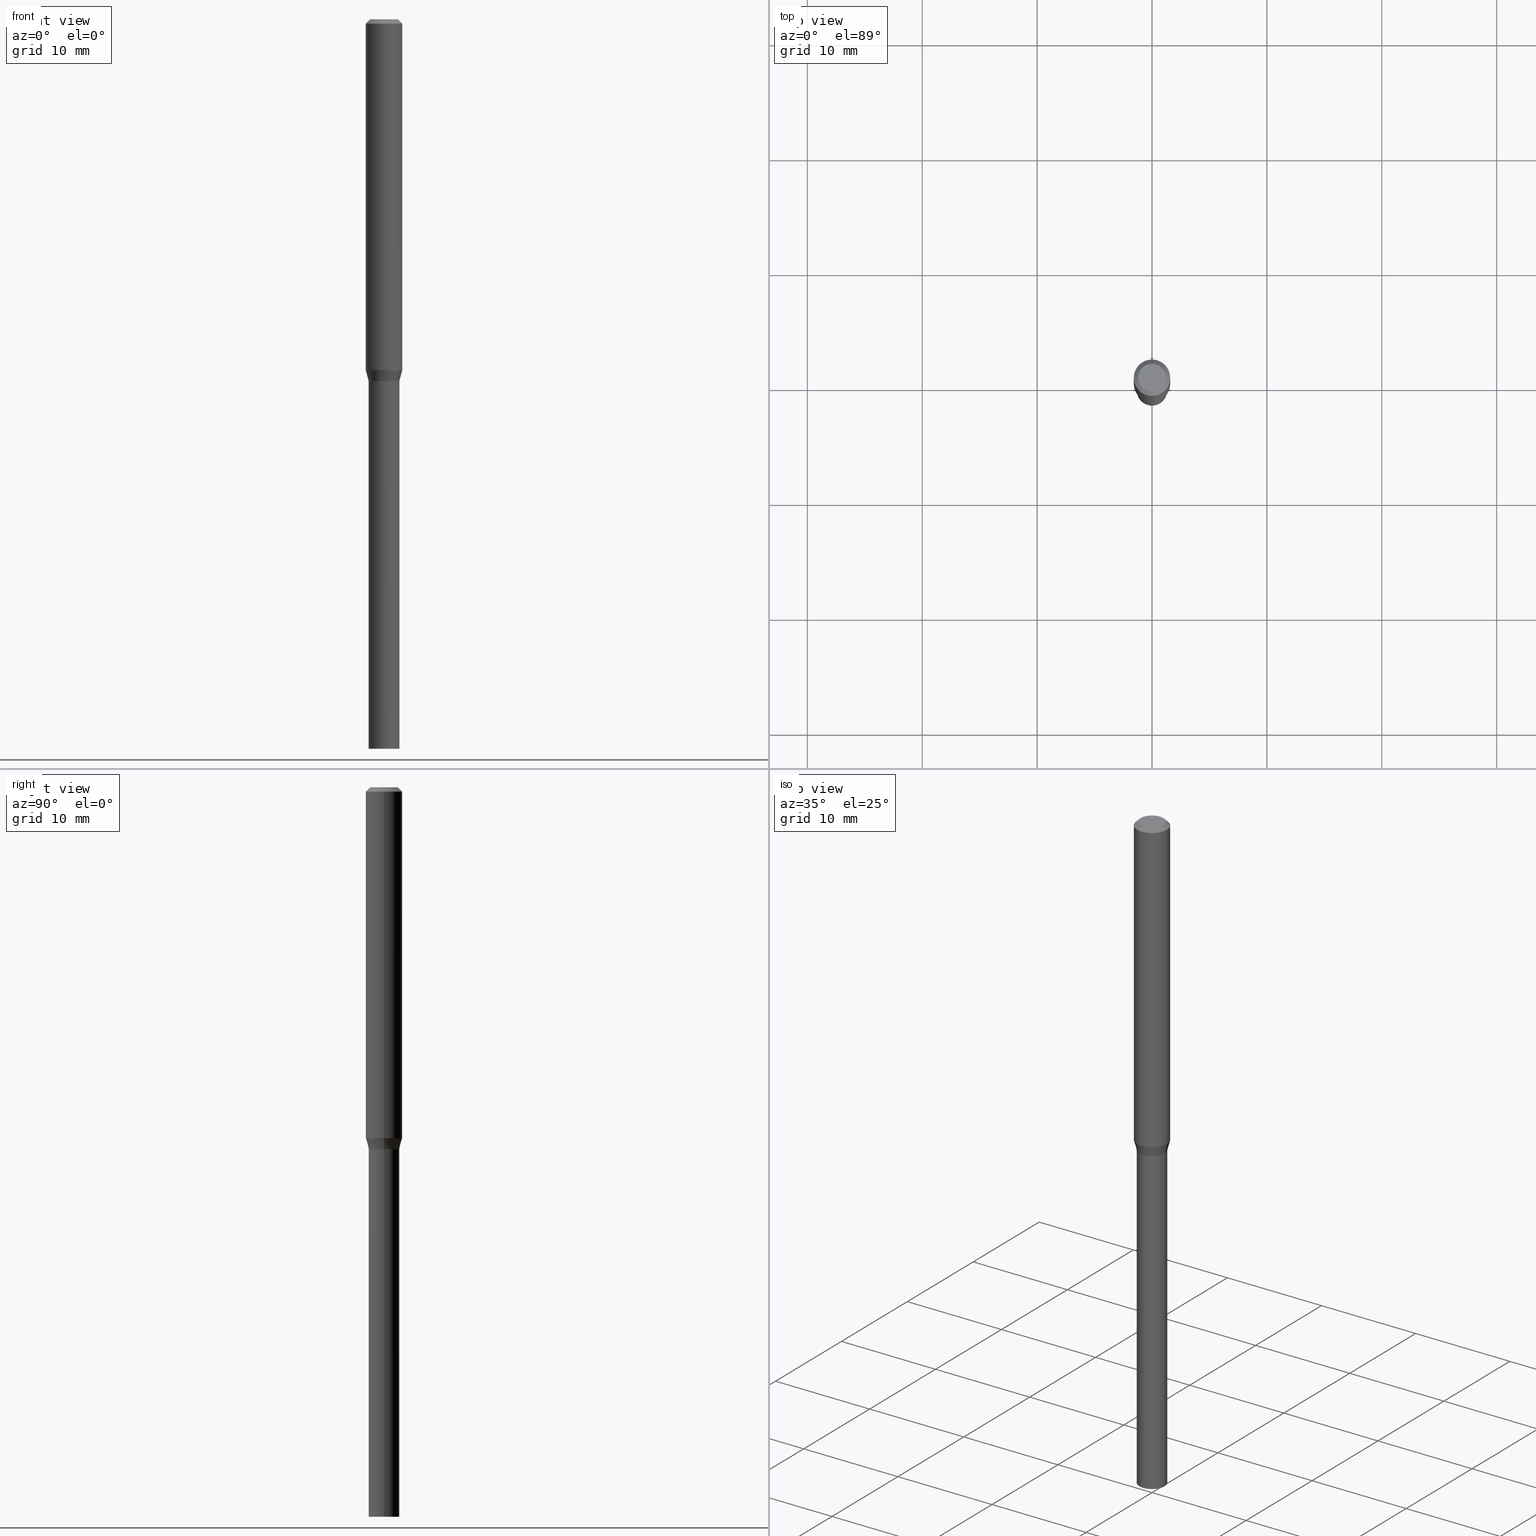
[diagram: canonical four-view strip — front | top / right | iso, engineering-drawing reading convention]
A machine part, canonical four-view strip (front | top / right | iso — engineering-drawing reading convention). The complete STEP part file that produces these views, byte-faithful:
ISO-10303-21;
HEADER;
FILE_DESCRIPTION (( 'STEP AP203' ),
    '1' );
FILE_NAME ('01307.STEP',
    '2024-03-20T01:19:23',
    ( '' ),
    ( '' ),
    'SwSTEP 2.0',
    'SolidWorks 2023',
    '' );
FILE_SCHEMA (( 'CONFIG_CONTROL_DESIGN' ));
ENDSEC;

DATA;
#1 = DIRECTION ( 'NONE',  ( 1.000000000000000000, -6.982962677686265922E-15, 4.876176775795935232E-29 ) ) ;
#2 = DIRECTION ( 'NONE',  ( -2.438088387897960049E-29, 3.491481338843145188E-15, 1.000000000000000000 ) ) ;
#3 = PERSON_AND_ORGANIZATION ( #52, #338 ) ;
#4 = EDGE_CURVE ( 'NONE', #453, #76, #447, .T. ) ;
#5 = CIRCLE ( 'NONE', #309, 0.05249999999999964417 ) ;
#6 = PERSON_AND_ORGANIZATION ( #52, #338 ) ;
#7 = ORIENTED_EDGE ( 'NONE', *, *, #183, .F. ) ;
#8 = AXIS2_PLACEMENT_3D ( 'NONE', #58, #206, #278 ) ;
#9 = SECURITY_CLASSIFICATION ( '', '', #393 ) ;
#10 = EDGE_CURVE ( 'NONE', #339, #76, #5, .T. ) ;
#11 = PERSON_AND_ORGANIZATION ( #52, #338 ) ;
#12 = ORIENTED_EDGE ( 'NONE', *, *, #356, .F. ) ;
#13 = EDGE_CURVE ( 'NONE', #224, #94, #275, .T. ) ;
#14 = PERSON_AND_ORGANIZATION_ROLE ( 'design_supplier' ) ;
#15 = ORIENTED_EDGE ( 'NONE', *, *, #388, .T. ) ;
#16 = ORIENTED_EDGE ( 'NONE', *, *, #64, .F. ) ;
#17 = VECTOR ( 'NONE', #380, 39.37007874015748143 ) ;
#18 = AXIS2_PLACEMENT_3D ( 'NONE', #171, #240, #378 ) ;
#19 = LINE ( 'NONE', #367, #174 ) ;
#20 = LOCAL_TIME ( 21, 19, 23.00000000000000000, #441 ) ;
#21 = ORIENTED_EDGE ( 'NONE', *, *, #111, .F. ) ;
#22 = EDGE_CURVE ( 'NONE', #332, #222, #186, .T. ) ;
#23 = DIRECTION ( 'NONE',  ( -2.445468806185136597E-29, 3.491481338843145583E-15, 1.000000000000000000 ) ) ;
#24 = DIRECTION ( 'NONE',  ( 1.000000000000000000, -6.982962677686258822E-15, 0.000000000000000000 ) ) ;
#25 = AXIS2_PLACEMENT_3D ( 'NONE', #204, #175, #349 ) ;
#26 = CARTESIAN_POINT ( 'NONE',  ( -1.242481641055671551E-44, 1.773934491672540338E-30, 5.080750316312184837E-16 ) ) ;
#27 = DIRECTION ( 'NONE',  ( 1.000000000000000000, -6.982962677686258822E-15, 0.000000000000000000 ) ) ;
#28 = EDGE_CURVE ( 'NONE', #451, #453, #228, .T. ) ;
#29 = CARTESIAN_POINT ( 'NONE',  ( 2.941115181339488673E-29, -4.199133002663083493E-15, -1.202679491924309785 ) ) ;
#30 = DIRECTION ( 'NONE',  ( -2.445468806185136597E-29, 3.491481338843145583E-15, 1.000000000000000000 ) ) ;
#31 = CIRCLE ( 'NONE', #18, 0.04749999999999999362 ) ;
#32 = DIRECTION ( 'NONE',  ( 1.000000000000000000, -6.982962677686266711E-15, 4.876176775795935793E-29 ) ) ;
#33 = CARTESIAN_POINT ( 'NONE',  ( 3.668203209277705088E-31, -5.237222008264718399E-17, -0.01499999999999999944 ) ) ;
#34 = ADVANCED_FACE ( 'NONE', ( #377 ), #98, .T. ) ;
#35 = EDGE_CURVE ( 'NONE', #196, #124, #57, .T. ) ;
#36 = CARTESIAN_POINT ( 'NONE',  ( 0.000000000000000000, 0.000000000000000000, 0.000000000000000000 ) ) ;
#37 = APPLICATION_PROTOCOL_DEFINITION ( 'international standard', 'config_control_design', 1994, #306 ) ;
#38 = VECTOR ( 'NONE', #143, 39.37007874015748143 ) ;
#39 = DIRECTION ( 'NONE',  ( -2.445468806185136597E-29, 3.491481338843145583E-15, 1.000000000000000000 ) ) ;
#40 = DIRECTION ( 'NONE',  ( 0.7071067811865656694, -2.468850131082446387E-15, 0.7071067811865294761 ) ) ;
#41 = EDGE_LOOP ( 'NONE', ( #97, #15 ) ) ;
#42 = DATE_TIME_ROLE ( 'classification_date' ) ;
#43 = ORIENTED_EDGE ( 'NONE', *, *, #388, .F. ) ;
#44 = EDGE_LOOP ( 'NONE', ( #7, #417, #189, #43 ) ) ;
#45 = CIRCLE ( 'NONE', #293, 0.05249999999999964417 ) ;
#46 = LOCAL_TIME ( 21, 19, 23.00000000000000000, #157 ) ;
#47 = CARTESIAN_POINT ( 'NONE',  ( 2.941115181339488673E-29, -4.199133002663083493E-15, -1.202679491924309785 ) ) ;
#48 = APPLICATION_PROTOCOL_DEFINITION ( 'international standard', 'config_control_design', 1994, #424 ) ;
#49 = ORIENTED_EDGE ( 'NONE', *, *, #13, .F. ) ;
#50 = APPROVAL_ROLE ( '' ) ;
#51 = ORIENTED_EDGE ( 'NONE', *, *, #457, .F. ) ;
#52 = PERSON ( 'UNSPECIFIED', 'UNSPECIFIED', 'UNSPECIFIED', ('UNSPECIFIED'), ('UNSPECIFIED'), ('UNSPECIFIED') ) ;
#53 = CARTESIAN_POINT ( 'NONE',  ( -0.05249999999999999806, -6.156035167362630348E-15, -2.500000000000000000 ) ) ;
#54 = AXIS2_PLACEMENT_3D ( 'NONE', #385, #214, #172 ) ;
#55 = DIRECTION ( 'NONE',  ( -2.445468806185136597E-29, 3.491481338843145583E-15, 1.000000000000000000 ) ) ;
#56 = CARTESIAN_POINT ( 'NONE',  ( 3.031158585266477520E-29, -4.327691119496080108E-15, -1.239500000000000268 ) ) ;
#57 = LINE ( 'NONE', #201, #17 ) ;
#58 = CARTESIAN_POINT ( 'NONE',  ( 3.668203209277705088E-31, -5.237222008264718399E-17, -0.01499999999999999944 ) ) ;
#59 = AXIS2_PLACEMENT_3D ( 'NONE', #107, #70, #315 ) ;
#60 = CARTESIAN_POINT ( 'NONE',  ( 3.032381319669569201E-29, -4.329436860165500033E-15, -1.239999999999999991 ) ) ;
#61 = DIRECTION ( 'NONE',  ( -0.7071067811865656694, 7.493145998870420424E-15, 0.7071067811865294761 ) ) ;
#62 = FACE_OUTER_BOUND ( 'NONE', #198, .T. ) ;
#63 = LINE ( 'NONE', #427, #303 ) ;
#64 = EDGE_CURVE ( 'NONE', #398, #442, #236, .T. ) ;
#65 = ADVANCED_FACE ( 'NONE', ( #165 ), #205, .T. ) ;
#66 = DIRECTION ( 'NONE',  ( -2.445468806185136597E-29, 3.491481338843145583E-15, 1.000000000000000000 ) ) ;
#67 = DIRECTION ( 'NONE',  ( 1.000000000000000000, -6.982962677686259611E-15, 0.000000000000000000 ) ) ;
#68 = FACE_OUTER_BOUND ( 'NONE', #368, .T. ) ;
#69 =( NAMED_UNIT ( * ) PLANE_ANGLE_UNIT ( ) SI_UNIT ( $, .RADIAN. ) );
#70 = DIRECTION ( 'NONE',  ( -2.445468806185136597E-29, 3.491481338843145583E-15, 1.000000000000000000 ) ) ;
#71 = CARTESIAN_POINT ( 'NONE',  ( 3.032381319669569201E-29, -4.329436860165500033E-15, -1.239999999999999991 ) ) ;
#72 = VECTOR ( 'NONE', #176, 39.37007874015748143 ) ;
#73 =( CONVERSION_BASED_UNIT ( 'INCH', #459 ) LENGTH_UNIT ( ) NAMED_UNIT ( #242 ) );
#74 = PERSON_AND_ORGANIZATION ( #52, #338 ) ;
#75 = ORIENTED_EDGE ( 'NONE', *, *, #28, .T. ) ;
#76 = VERTEX_POINT ( 'NONE', #310 ) ;
#77 = UNCERTAINTY_MEASURE_WITH_UNIT (LENGTH_MEASURE( 1.000000000000000082E-05 ), #73, 'distance_accuracy_value', 'NONE');
#78 = APPROVAL_DATE_TIME ( #261, #289 ) ;
#79 = ORIENTED_EDGE ( 'NONE', *, *, #64, .T. ) ;
#80 = AXIS2_PLACEMENT_3D ( 'NONE', #112, #389, #180 ) ;
#81 = DIRECTION ( 'NONE',  ( -2.445468806185136597E-29, 3.491481338843145583E-15, 1.000000000000000000 ) ) ;
#82 = MANIFOLD_SOLID_BREP ( 'Body-Move/Copy2[1]', #151 ) ;
#83 = APPROVAL_ROLE ( '' ) ;
#84 = EDGE_LOOP ( 'NONE', ( #292, #162, #314, #120 ) ) ;
#85 = EDGE_LOOP ( 'NONE', ( #305, #235, #395, #21 ) ) ;
#86 = DIRECTION ( 'NONE',  ( -2.445468806185136597E-29, 3.491481338843145583E-15, 1.000000000000000000 ) ) ;
#87 = DIRECTION ( 'NONE',  ( -2.445468806185136877E-29, 3.491481338843145188E-15, 1.000000000000000000 ) ) ;
#88 = DIRECTION ( 'NONE',  ( -1.000000000000000000, 6.982962677686265922E-15, -4.876176775795935793E-29 ) ) ;
#89 = EDGE_CURVE ( 'NONE', #94, #224, #31, .T. ) ;
#90 = CARTESIAN_POINT ( 'NONE',  ( -0.05249999999999964417, -3.956401923891449865E-15, -1.239999999999999991 ) ) ;
#91 = VECTOR ( 'NONE', #435, 39.37007874015748143 ) ;
#92 = CARTESIAN_POINT ( 'NONE',  ( 3.032381319669569761E-29, -4.329436860165500822E-15, -1.240000000000000213 ) ) ;
#93 = EDGE_CURVE ( 'NONE', #158, #124, #463, .T. ) ;
#94 = VERTEX_POINT ( 'NONE', #137 ) ;
#95 = PLANE ( 'NONE',  #418 ) ;
#96 = DIRECTION ( 'NONE',  ( -2.445468806185136597E-29, 3.491481338843145583E-15, 1.000000000000000000 ) ) ;
#97 = ORIENTED_EDGE ( 'NONE', *, *, #252, .T. ) ;
#98 = CONICAL_SURFACE ( 'NONE', #8, 0.06250000000000000000, 0.7853981633974314036 ) ;
#99 = DIRECTION ( 'NONE',  ( 1.000000000000000000, -6.982962677686270655E-15, 0.000000000000000000 ) ) ;
#100 = PLANE ( 'NONE',  #166 ) ;
#101 = EDGE_CURVE ( 'NONE', #451, #448, #432, .T. ) ;
#102 = CARTESIAN_POINT ( 'NONE',  ( 0.000000000000000000, 0.000000000000000000, 0.000000000000000000 ) ) ;
#103 = CARTESIAN_POINT ( 'NONE',  ( 0.000000000000000000, 0.000000000000000000, 0.000000000000000000 ) ) ;
#104 = DIRECTION ( 'NONE',  ( 1.000000000000000000, -6.982962677686258822E-15, 0.000000000000000000 ) ) ;
#105 = CARTESIAN_POINT ( 'NONE',  ( 3.668203209277705088E-31, -5.237222008264718399E-17, -0.01499999999999999944 ) ) ;
#106 = CIRCLE ( 'NONE', #178, 0.05249999999999964417 ) ;
#107 = CARTESIAN_POINT ( 'NONE',  ( 0.000000000000000000, 0.000000000000000000, 0.000000000000000000 ) ) ;
#108 = CARTESIAN_POINT ( 'NONE',  ( -0.05249999999999964417, -3.855722858352235766E-15, -1.239999999999999991 ) ) ;
#109 = FACE_OUTER_BOUND ( 'NONE', #336, .T. ) ;
#110 = DIRECTION ( 'NONE',  ( -2.445468806185136597E-29, 3.491481338843145583E-15, 1.000000000000000000 ) ) ;
#111 = EDGE_CURVE ( 'NONE', #224, #124, #319, .T. ) ;
#112 = CARTESIAN_POINT ( 'NONE',  ( 3.032381319669569761E-29, -4.329436860165500822E-15, -1.240000000000000213 ) ) ;
#113 = AXIS2_PLACEMENT_3D ( 'NONE', #350, #30, #274 ) ;
#114 = CALENDAR_DATE ( 2024, 19, 3 ) ;
#115 = ORIENTED_EDGE ( 'NONE', *, *, #13, .T. ) ;
#116 = APPROVAL_STATUS ( 'not_yet_approved' ) ;
#117 = VERTEX_POINT ( 'NONE', #428 ) ;
#118 = CC_DESIGN_PERSON_AND_ORGANIZATION_ASSIGNMENT ( #291, #264, ( #187 ) ) ;
#119 = APPROVAL_DATE_TIME ( #121, #284 ) ;
#120 = ORIENTED_EDGE ( 'NONE', *, *, #370, .F. ) ;
#121 = DATE_AND_TIME ( #331, #287 ) ;
#122 = ORIENTED_EDGE ( 'NONE', *, *, #10, .T. ) ;
#123 = CONICAL_SURFACE ( 'NONE', #379, 0.06250000000000000000, 0.7853981633974314036 ) ;
#124 = VERTEX_POINT ( 'NONE', #248 ) ;
#125 = ORIENTED_EDGE ( 'NONE', *, *, #231, .T. ) ;
#126 = DIRECTION ( 'NONE',  ( 1.000000000000000000, -6.982962677686265922E-15, 4.876176775795935793E-29 ) ) ;
#127 = EDGE_CURVE ( 'NONE', #398, #76, #179, .T. ) ;
#128 = CARTESIAN_POINT ( 'NONE',  ( 6.113672015462842613E-29, -8.728703347107864943E-15, -2.500000000000000000 ) ) ;
#129 = ORIENTED_EDGE ( 'NONE', *, *, #101, .T. ) ;
#130 = CARTESIAN_POINT ( 'NONE',  ( 0.05249999999999999806, -3.666055405785289629E-16, 2.559992807292866011E-30 ) ) ;
#131 = AXIS2_PLACEMENT_3D ( 'NONE', #164, #307, #414 ) ;
#132 = ORIENTED_EDGE ( 'NONE', *, *, #457, .T. ) ;
#133 = CARTESIAN_POINT ( 'NONE',  ( 6.113672015462842613E-29, -8.728703347107864943E-15, -2.500000000000000000 ) ) ;
#134 = ORIENTED_EDGE ( 'NONE', *, *, #203, .T. ) ;
#135 = FACE_OUTER_BOUND ( 'NONE', #227, .T. ) ;
#136 = PLANE ( 'NONE',  #344 ) ;
#137 = CARTESIAN_POINT ( 'NONE',  ( 0.04749999999999999362, -4.035134999187569255E-16, 5.080750316312210475E-16 ) ) ;
#138 = DIRECTION ( 'NONE',  ( -2.445468806185136597E-29, 3.491481338843145583E-15, 1.000000000000000000 ) ) ;
#139 = DIRECTION ( 'NONE',  ( -2.445468806185136597E-29, 3.491481338843145583E-15, 1.000000000000000000 ) ) ;
#140 = FACE_OUTER_BOUND ( 'NONE', #185, .T. ) ;
#141 = CC_DESIGN_DATE_AND_TIME_ASSIGNMENT ( #297, #42, ( #9 ) ) ;
#142 = AXIS2_PLACEMENT_3D ( 'NONE', #36, #351, #32 ) ;
#143 = DIRECTION ( 'NONE',  ( -2.445468806185136877E-29, 3.491481338843145188E-15, 1.000000000000000000 ) ) ;
#144 = DIRECTION ( 'NONE',  ( 1.000000000000000000, 0.000000000000000000, 0.000000000000000000 ) ) ;
#145 = CYLINDRICAL_SURFACE ( 'NONE', #59, 0.05249999999999999806 ) ;
#146 = DIRECTION ( 'NONE',  ( -2.445468806185136877E-29, 3.491481338843145188E-15, 1.000000000000000000 ) ) ;
#147 = FACE_OUTER_BOUND ( 'NONE', #269, .T. ) ;
#148 = DATE_TIME_ROLE ( 'creation_date' ) ;
#149 = EDGE_LOOP ( 'NONE', ( #75, #243, #371, #327 ) ) ;
#150 = ADVANCED_FACE ( 'NONE', ( #250 ), #282, .T. ) ;
#151 = CLOSED_SHELL ( 'NONE', ( #168, #342, #415, #270 ) ) ;
#152 = CIRCLE ( 'NONE', #391, 0.06250000000000000000 ) ;
#153 = APPROVAL_DATE_TIME ( #191, #218 ) ;
#154 = ORIENTED_EDGE ( 'NONE', *, *, #356, .T. ) ;
#155 = ADVANCED_FACE ( 'NONE', ( #68 ), #321, .T. ) ;
#156 = PERSON_AND_ORGANIZATION ( #52, #338 ) ;
#157 = COORDINATED_UNIVERSAL_TIME_OFFSET ( 5, 0, .BEHIND. ) ;
#158 = VERTEX_POINT ( 'NONE', #419 ) ;
#159 = EDGE_CURVE ( 'NONE', #196, #448, #152, .T. ) ;
#160 = ORIENTED_EDGE ( 'NONE', *, *, #461, .T. ) ;
#161 = DIRECTION ( 'NONE',  ( 0.7071067811865355823, -7.319954787623215025E-15, -0.7071067811865594521 ) ) ;
#162 = ORIENTED_EDGE ( 'NONE', *, *, #183, .T. ) ;
#163 = DIRECTION ( 'NONE',  ( 1.000000000000000000, -6.982962677686270655E-15, 0.000000000000000000 ) ) ;
#164 = CARTESIAN_POINT ( 'NONE',  ( 3.032381319669569201E-29, -4.329436860165500033E-15, -1.239999999999999991 ) ) ;
#165 = FACE_OUTER_BOUND ( 'NONE', #193, .T. ) ;
#166 = AXIS2_PLACEMENT_3D ( 'NONE', #313, #208, #126 ) ;
#167 = ADVANCED_FACE ( 'NONE', ( #62 ), #381, .F. ) ;
#168 = ADVANCED_FACE ( 'NONE', ( #255 ), #145, .T. ) ;
#169 = ORIENTED_EDGE ( 'NONE', *, *, #245, .F. ) ;
#170 = ADVANCED_FACE ( 'NONE', ( #355 ), #123, .T. ) ;
#171 = CARTESIAN_POINT ( 'NONE',  ( -1.242481641055671551E-44, 1.773934491672540338E-30, 5.080750316312184837E-16 ) ) ;
#172 = DIRECTION ( 'NONE',  ( 1.000000000000000000, -6.982962677686267499E-15, 4.876176775795935793E-29 ) ) ;
#173 = CARTESIAN_POINT ( 'NONE',  ( 0.05249999999999964417, -4.694296660074606112E-15, -1.239500000000000268 ) ) ;
#174 = VECTOR ( 'NONE', #161, 39.37007874015748143 ) ;
#175 = DIRECTION ( 'NONE',  ( -2.445468806185136597E-29, 3.491481338843145583E-15, 1.000000000000000000 ) ) ;
#176 = DIRECTION ( 'NONE',  ( -0.7071067811865355823, 2.468850131082132026E-15, -0.7071067811865594521 ) ) ;
#177 = DIRECTION ( 'NONE',  ( 1.000000000000000000, -6.982962677686266711E-15, 4.876176775795935793E-29 ) ) ;
#178 = AXIS2_PLACEMENT_3D ( 'NONE', #263, #271, #369 ) ;
#179 = LINE ( 'NONE', #458, #386 ) ;
#180 = DIRECTION ( 'NONE',  ( 1.000000000000000000, -6.982962677686268288E-15, 0.000000000000000000 ) ) ;
#181 = PERSON_AND_ORGANIZATION_ROLE ( 'design_owner' ) ;
#182 = ORIENTED_EDGE ( 'NONE', *, *, #4, .T. ) ;
#183 = EDGE_CURVE ( 'NONE', #222, #117, #455, .T. ) ;
#184 = CALENDAR_DATE ( 2024, 19, 3 ) ;
#185 = EDGE_LOOP ( 'NONE', ( #115, #277 ) ) ;
#186 = CIRCLE ( 'NONE', #399, 0.05249999999999999806 ) ;
#187 = PRODUCT_DEFINITION_FORMATION_WITH_SPECIFIED_SOURCE ( 'ANY', '', #466, .NOT_KNOWN. ) ;
#188 = COORDINATED_UNIVERSAL_TIME_OFFSET ( 5, 0, .BEHIND. ) ;
#189 = ORIENTED_EDGE ( 'NONE', *, *, #370, .T. ) ;
#190 = DIRECTION ( 'NONE',  ( 1.000000000000000000, -6.982962677686268288E-15, 0.000000000000000000 ) ) ;
#191 = DATE_AND_TIME ( #114, #330 ) ;
#192 = ORIENTED_EDGE ( 'NONE', *, *, #4, .F. ) ;
#193 = EDGE_LOOP ( 'NONE', ( #154, #311, #296, #239 ) ) ;
#194 = DIRECTION ( 'NONE',  ( 1.000000000000000000, -6.982962677686268288E-15, 0.000000000000000000 ) ) ;
#195 = AXIS2_PLACEMENT_3D ( 'NONE', #60, #343, #24 ) ;
#196 = VERTEX_POINT ( 'NONE', #217 ) ;
#197 = AXIS2_PLACEMENT_3D ( 'NONE', #464, #256, #144 ) ;
#198 = EDGE_LOOP ( 'NONE', ( #452, #182, #446, #362 ) ) ;
#199 = DIRECTION ( 'NONE',  ( -0.2588190451025211281, 5.211531920934547886E-15, 0.9659258262890679791 ) ) ;
#200 = ADVANCED_FACE ( 'NONE', ( #135 ), #382, .T. ) ;
#201 = CARTESIAN_POINT ( 'NONE',  ( -0.06250000000000000000, 4.440892098500626162E-16, -3.074334431409316114E-30 ) ) ;
#202 = CARTESIAN_POINT ( 'NONE',  ( 0.05249999999999999806, -9.095308887686393314E-15, -2.500000000000000000 ) ) ;
#203 = EDGE_CURVE ( 'NONE', #451, #339, #320, .T. ) ;
#204 = CARTESIAN_POINT ( 'NONE',  ( 3.668203209277705088E-31, -5.237222008264718399E-17, -0.01499999999999999944 ) ) ;
#205 = CONICAL_SURFACE ( 'NONE', #302, 0.05199999999999999067, 0.7853981633974739252 ) ;
#206 = DIRECTION ( 'NONE',  ( 2.445468806185136597E-29, -3.491481338843145583E-15, -1.000000000000000000 ) ) ;
#207 = CARTESIAN_POINT ( 'NONE',  ( 3.032381319669569201E-29, -4.329436860165500033E-15, -1.239999999999999991 ) ) ;
#208 = DIRECTION ( 'NONE',  ( -2.438088387897960049E-29, 3.491481338843145188E-15, 1.000000000000000000 ) ) ;
#209 = CARTESIAN_POINT ( 'NONE',  ( -0.05249999999999999806, 3.730349362740525838E-16, -2.582440922383825311E-30 ) ) ;
#210 = CARTESIAN_POINT ( 'NONE',  ( 0.05199999999999999067, -4.692550919405185397E-15, -1.239999999999999991 ) ) ;
#211 = VECTOR ( 'NONE', #87, 39.37007874015748143 ) ;
#212 = CIRCLE ( 'NONE', #113, 0.05199999999999999067 ) ;
#213 = AXIS2_PLACEMENT_3D ( 'NONE', #257, #39, #1 ) ;
#214 = DIRECTION ( 'NONE',  ( -2.445468806185136597E-29, 3.491481338843145583E-15, 1.000000000000000000 ) ) ;
#215 = DIRECTION ( 'NONE',  ( 1.000000000000000000, -6.982962677686267499E-15, 4.876176775795935793E-29 ) ) ;
#216 = EDGE_CURVE ( 'NONE', #76, #339, #106, .T. ) ;
#217 = CARTESIAN_POINT ( 'NONE',  ( -0.06250000000000000000, -3.755043792813020877E-15, -1.202679491924309785 ) ) ;
#218 = APPROVAL ( #397, 'UNSPECIFIED' ) ;
#219 = DIRECTION ( 'NONE',  ( 2.438088387897960049E-29, -3.491481338843145188E-15, -1.000000000000000000 ) ) ;
#220 = AXIS2_PLACEMENT_3D ( 'NONE', #400, #2, #335 ) ;
#221 =( NAMED_UNIT ( * ) SI_UNIT ( $, .STERADIAN. ) SOLID_ANGLE_UNIT ( ) );
#222 = VERTEX_POINT ( 'NONE', #53 ) ;
#223 = COORDINATED_UNIVERSAL_TIME_OFFSET ( 5, 0, .BEHIND. ) ;
#224 = VERTEX_POINT ( 'NONE', #407 ) ;
#225 = DIRECTION ( 'NONE',  ( 1.000000000000000000, -6.982962677686259611E-15, 0.000000000000000000 ) ) ;
#226 = FACE_OUTER_BOUND ( 'NONE', #280, .T. ) ;
#227 = EDGE_LOOP ( 'NONE', ( #265, #334, #160, #51 ) ) ;
#228 = CIRCLE ( 'NONE', #131, 0.05249999999999964417 ) ;
#229 = APPROVAL_PERSON_ORGANIZATION ( #333, #218, #439 ) ;
#230 = EDGE_LOOP ( 'NONE', ( #409, #373 ) ) ;
#231 = EDGE_CURVE ( 'NONE', #448, #196, #438, .T. ) ;
#232 = CARTESIAN_POINT ( 'NONE',  ( 3.032381319669569201E-29, -4.329436860165500033E-15, -1.239999999999999991 ) ) ;
#233 = SHAPE_DEFINITION_REPRESENTATION ( #347, #434 ) ;
#234 = ORIENTED_EDGE ( 'NONE', *, *, #404, .T. ) ;
#235 = ORIENTED_EDGE ( 'NONE', *, *, #245, .T. ) ;
#236 = CIRCLE ( 'NONE', #195, 0.05199999999999999067 ) ;
#237 = DIRECTION ( 'NONE',  ( -2.445468806185136597E-29, 3.491481338843145583E-15, 1.000000000000000000 ) ) ;
#238 = CARTESIAN_POINT ( 'NONE',  ( 3.032381319669569201E-29, -4.329436860165500033E-15, -1.239999999999999991 ) ) ;
#239 = ORIENTED_EDGE ( 'NONE', *, *, #404, .F. ) ;
#240 = DIRECTION ( 'NONE',  ( -2.445468806185136597E-29, 3.491481338843145583E-15, 1.000000000000000000 ) ) ;
#241 = EDGE_CURVE ( 'NONE', #222, #332, #360, .T. ) ;
#242 = DIMENSIONAL_EXPONENTS ( 1.000000000000000000, 0.000000000000000000, 0.000000000000000000, 0.000000000000000000, 0.000000000000000000, 0.000000000000000000, 0.000000000000000000 ) ;
#243 = ORIENTED_EDGE ( 'NONE', *, *, #365, .T. ) ;
#244 = CIRCLE ( 'NONE', #366, 0.05249999999999999806 ) ;
#245 = EDGE_CURVE ( 'NONE', #94, #158, #19, .T. ) ;
#246 = PLANE ( 'NONE',  #220 ) ;
#247 = CARTESIAN_POINT ( 'NONE',  ( -0.06250000000000000000, 3.840629472727444916E-16, -0.01499999999999999944 ) ) ;
#248 = CARTESIAN_POINT ( 'NONE',  ( -0.06250000000000000000, -1.681663401522802867E-15, -0.01499999999999999944 ) ) ;
#249 = DIRECTION ( 'NONE',  ( 1.000000000000000000, -6.982962677686266711E-15, 0.000000000000000000 ) ) ;
#250 = FACE_OUTER_BOUND ( 'NONE', #304, .T. ) ;
#251 =( LENGTH_UNIT ( ) NAMED_UNIT ( * ) SI_UNIT ( $, .METRE. ) );
#252 = EDGE_CURVE ( 'NONE', #437, #117, #244, .T. ) ;
#253 =( GEOMETRIC_REPRESENTATION_CONTEXT ( 3 ) GLOBAL_UNCERTAINTY_ASSIGNED_CONTEXT ( ( #77 ) ) GLOBAL_UNIT_ASSIGNED_CONTEXT ( ( #73, #69, #221 ) ) REPRESENTATION_CONTEXT ( 'NONE', 'WORKASPACE' ) );
#254 = DIRECTION ( 'NONE',  ( -2.445468806185136877E-29, 3.491481338843145188E-15, 1.000000000000000000 ) ) ;
#255 = FACE_OUTER_BOUND ( 'NONE', #84, .T. ) ;
#256 = DIRECTION ( 'NONE',  ( 0.000000000000000000, 0.000000000000000000, 1.000000000000000000 ) ) ;
#257 = CARTESIAN_POINT ( 'NONE',  ( 0.000000000000000000, 0.000000000000000000, 0.000000000000000000 ) ) ;
#258 = AXIS2_PLACEMENT_3D ( 'NONE', #47, #55, #163 ) ;
#259 = AXIS2_PLACEMENT_3D ( 'NONE', #103, #283, #215 ) ;
#260 = EDGE_LOOP ( 'NONE', ( #169, #49, #444, #132 ) ) ;
#261 = DATE_AND_TIME ( #184, #20 ) ;
#262 = ORIENTED_EDGE ( 'NONE', *, *, #461, .F. ) ;
#263 = CARTESIAN_POINT ( 'NONE',  ( 3.031158585266477520E-29, -4.327691119496080108E-15, -1.239500000000000268 ) ) ;
#264 = PERSON_AND_ORGANIZATION_ROLE ( 'creator' ) ;
#265 = ORIENTED_EDGE ( 'NONE', *, *, #35, .F. ) ;
#266 = VECTOR ( 'NONE', #357, 39.37007874015748854 ) ;
#267 = CC_DESIGN_SECURITY_CLASSIFICATION ( #9, ( #187 ) ) ;
#268 = COORDINATED_UNIVERSAL_TIME_OFFSET ( 5, 0, .BEHIND. ) ;
#269 = EDGE_LOOP ( 'NONE', ( #12, #16 ) ) ;
#270 = ADVANCED_FACE ( 'NONE', ( #299 ), #95, .F. ) ;
#271 = DIRECTION ( 'NONE',  ( -2.445468806185136597E-29, 3.491481338843145583E-15, 1.000000000000000000 ) ) ;
#272 = ORIENTED_EDGE ( 'NONE', *, *, #28, .F. ) ;
#273 = CARTESIAN_POINT ( 'NONE',  ( -0.05249999999999964417, 3.730349362740500693E-16, -2.582440922383808145E-30 ) ) ;
#274 = DIRECTION ( 'NONE',  ( 1.000000000000000000, -6.982962677686258822E-15, 0.000000000000000000 ) ) ;
#275 = CIRCLE ( 'NONE', #328, 0.04749999999999999362 ) ;
#276 = AXIS2_PLACEMENT_3D ( 'NONE', #71, #138, #353 ) ;
#277 = ORIENTED_EDGE ( 'NONE', *, *, #89, .T. ) ;
#278 = DIRECTION ( 'NONE',  ( -1.000000000000000000, 6.982962677686266711E-15, 0.000000000000000000 ) ) ;
#279 = DIRECTION ( 'NONE',  ( 1.000000000000000000, -6.982962677686268288E-15, 0.000000000000000000 ) ) ;
#280 = EDGE_LOOP ( 'NONE', ( #403, #405, #129, #298 ) ) ;
#281 = CARTESIAN_POINT ( 'NONE',  ( 0.05249999999999999806, -4.696042400744029982E-15, -1.240000000000000213 ) ) ;
#282 = CYLINDRICAL_SURFACE ( 'NONE', #337, 0.06250000000000000000 ) ;
#283 = DIRECTION ( 'NONE',  ( -2.445468806185136597E-29, 3.491481338843145583E-15, 1.000000000000000000 ) ) ;
#284 = APPROVAL ( #326, 'UNSPECIFIED' ) ;
#285 = DIRECTION ( 'NONE',  ( -2.445468806185136597E-29, 3.491481338843145583E-15, 1.000000000000000000 ) ) ;
#286 = LINE ( 'NONE', #210, #413 ) ;
#287 = LOCAL_TIME ( 21, 19, 23.00000000000000000, #188 ) ;
#288 = MECHANICAL_CONTEXT ( 'NONE', #306, 'mechanical' ) ;
#289 = APPROVAL ( #116, 'UNSPECIFIED' ) ;
#290 = FACE_OUTER_BOUND ( 'NONE', #149, .T. ) ;
#291 = PERSON_AND_ORGANIZATION ( #52, #338 ) ;
#292 = ORIENTED_EDGE ( 'NONE', *, *, #22, .T. ) ;
#293 = AXIS2_PLACEMENT_3D ( 'NONE', #232, #318, #67 ) ;
#294 = CC_DESIGN_APPROVAL ( #284, ( #187 ) ) ;
#295 = PERSON_AND_ORGANIZATION ( #52, #338 ) ;
#296 = ORIENTED_EDGE ( 'NONE', *, *, #10, .F. ) ;
#297 = DATE_AND_TIME ( #436, #401 ) ;
#298 = ORIENTED_EDGE ( 'NONE', *, *, #159, .F. ) ;
#299 = FACE_OUTER_BOUND ( 'NONE', #41, .T. ) ;
#300 = PERSON_AND_ORGANIZATION_ROLE ( 'creator' ) ;
#301 = DIRECTION ( 'NONE',  ( 2.438088387897960049E-29, -3.491481338843145188E-15, -1.000000000000000000 ) ) ;
#302 = AXIS2_PLACEMENT_3D ( 'NONE', #348, #96, #27 ) ;
#303 = VECTOR ( 'NONE', #146, 39.37007874015748143 ) ;
#304 = EDGE_LOOP ( 'NONE', ( #125, #394, #364, #262 ) ) ;
#305 = ORIENTED_EDGE ( 'NONE', *, *, #89, .F. ) ;
#306 = APPLICATION_CONTEXT ( 'configuration controlled 3d designs of mechanical parts and assemblies' ) ;
#307 = DIRECTION ( 'NONE',  ( -2.445468806185136597E-29, 3.491481338843145583E-15, 1.000000000000000000 ) ) ;
#308 = EDGE_CURVE ( 'NONE', #453, #451, #45, .T. ) ;
#309 = AXIS2_PLACEMENT_3D ( 'NONE', #56, #237, #376 ) ;
#310 = CARTESIAN_POINT ( 'NONE',  ( -0.05249999999999964417, -3.954656183222029940E-15, -1.239500000000000268 ) ) ;
#311 = ORIENTED_EDGE ( 'NONE', *, *, #127, .T. ) ;
#312 = ADVANCED_FACE ( 'NONE', ( #226 ), #329, .T. ) ;
#313 = CARTESIAN_POINT ( 'NONE',  ( 6.194428952736783458E-29, -8.613054816532157721E-15, -2.500000000000000000 ) ) ;
#314 = ORIENTED_EDGE ( 'NONE', *, *, #252, .F. ) ;
#315 = DIRECTION ( 'NONE',  ( 1.000000000000000000, -6.982962677686265922E-15, 4.876176775795935232E-29 ) ) ;
#316 = CC_DESIGN_PERSON_AND_ORGANIZATION_ASSIGNMENT ( #74, #363, ( #9 ) ) ;
#317 = CYLINDRICAL_SURFACE ( 'NONE', #259, 0.05249999999999964417 ) ;
#318 = DIRECTION ( 'NONE',  ( -2.445468806185136597E-29, 3.491481338843145583E-15, 1.000000000000000000 ) ) ;
#319 = LINE ( 'NONE', #247, #72 ) ;
#320 = LINE ( 'NONE', #462, #38 ) ;
#321 = CONICAL_SURFACE ( 'NONE', #429, 0.05199999999999999067, 0.7853981633974739252 ) ;
#322 = CC_DESIGN_APPROVAL ( #289, ( #9 ) ) ;
#323 = FACE_OUTER_BOUND ( 'NONE', #44, .T. ) ;
#324 = ADVANCED_FACE ( 'NONE', ( #147 ), #246, .F. ) ;
#325 = ORIENTED_EDGE ( 'NONE', *, *, #216, .F. ) ;
#326 = APPROVAL_STATUS ( 'not_yet_approved' ) ;
#327 = ORIENTED_EDGE ( 'NONE', *, *, #101, .F. ) ;
#328 = AXIS2_PLACEMENT_3D ( 'NONE', #26, #340, #416 ) ;
#329 = CONICAL_SURFACE ( 'NONE', #352, 0.05249999999999964417, 0.2617993877991498519 ) ;
#330 = LOCAL_TIME ( 21, 19, 23.00000000000000000, #268 ) ;
#331 = CALENDAR_DATE ( 2024, 19, 3 ) ;
#332 = VERTEX_POINT ( 'NONE', #202 ) ;
#333 = PERSON_AND_ORGANIZATION ( #52, #338 ) ;
#334 = ORIENTED_EDGE ( 'NONE', *, *, #159, .T. ) ;
#335 = DIRECTION ( 'NONE',  ( 1.000000000000000000, -6.982962677686265922E-15, 4.876176775795935793E-29 ) ) ;
#336 = EDGE_LOOP ( 'NONE', ( #192, #272, #134, #122 ) ) ;
#337 = AXIS2_PLACEMENT_3D ( 'NONE', #102, #426, #177 ) ;
#338 = ORGANIZATION ( 'UNSPECIFIED', 'UNSPECIFIED', '' ) ;
#339 = VERTEX_POINT ( 'NONE', #173 ) ;
#340 = DIRECTION ( 'NONE',  ( -2.445468806185136597E-29, 3.491481338843145583E-15, 1.000000000000000000 ) ) ;
#341 = LINE ( 'NONE', #130, #91 ) ;
#342 = ADVANCED_FACE ( 'NONE', ( #421 ), #100, .F. ) ;
#343 = DIRECTION ( 'NONE',  ( -2.445468806185136597E-29, 3.491481338843145583E-15, 1.000000000000000000 ) ) ;
#344 = AXIS2_PLACEMENT_3D ( 'NONE', #361, #219, #359 ) ;
#345 = ORIENTED_EDGE ( 'NONE', *, *, #127, .F. ) ;
#346 = CC_DESIGN_APPROVAL ( #218, ( #440 ) ) ;
#347 = PRODUCT_DEFINITION_SHAPE ( 'NONE', 'NONE',  #440 ) ;
#348 = CARTESIAN_POINT ( 'NONE',  ( 3.032381319669569201E-29, -4.329436860165500033E-15, -1.239999999999999991 ) ) ;
#349 = DIRECTION ( 'NONE',  ( 1.000000000000000000, -6.982962677686266711E-15, 0.000000000000000000 ) ) ;
#350 = CARTESIAN_POINT ( 'NONE',  ( 3.032381319669569201E-29, -4.329436860165500033E-15, -1.239999999999999991 ) ) ;
#351 = DIRECTION ( 'NONE',  ( -2.445468806185136597E-29, 3.491481338843145583E-15, 1.000000000000000000 ) ) ;
#352 = AXIS2_PLACEMENT_3D ( 'NONE', #238, #110, #225 ) ;
#353 = DIRECTION ( 'NONE',  ( 1.000000000000000000, -6.982962677686259611E-15, 0.000000000000000000 ) ) ;
#354 = CIRCLE ( 'NONE', #465, 0.06250000000000000000 ) ;
#355 = FACE_OUTER_BOUND ( 'NONE', #85, .T. ) ;
#356 = EDGE_CURVE ( 'NONE', #442, #398, #212, .T. ) ;
#357 = DIRECTION ( 'NONE',  ( 0.2588190451025211281, 1.565188264969622954E-15, 0.9659258262890679791 ) ) ;
#358 = DIRECTION ( 'NONE',  ( 2.445468806185136597E-29, -3.491481338843145583E-15, -1.000000000000000000 ) ) ;
#359 = DIRECTION ( 'NONE',  ( -1.000000000000000000, 6.982962677686265922E-15, -4.876176775795935793E-29 ) ) ;
#360 = CIRCLE ( 'NONE', #445, 0.05249999999999999806 ) ;
#361 = CARTESIAN_POINT ( 'NONE',  ( 3.316907271900976096E-16, 0.04749999999999999362, 8.819215222055985775E-17 ) ) ;
#362 = ORIENTED_EDGE ( 'NONE', *, *, #203, .F. ) ;
#363 = PERSON_AND_ORGANIZATION_ROLE ( 'classification_officer' ) ;
#364 = ORIENTED_EDGE ( 'NONE', *, *, #93, .F. ) ;
#365 = EDGE_CURVE ( 'NONE', #453, #196, #410, .T. ) ;
#366 = AXIS2_PLACEMENT_3D ( 'NONE', #92, #86, #190 ) ;
#367 = CARTESIAN_POINT ( 'NONE',  ( 0.06250000000000000000, -4.811533449433679005E-16, -0.01499999999999999944 ) ) ;
#368 = EDGE_LOOP ( 'NONE', ( #345, #79, #234, #325 ) ) ;
#369 = DIRECTION ( 'NONE',  ( 1.000000000000000000, -6.982962677686259611E-15, 0.000000000000000000 ) ) ;
#370 = EDGE_CURVE ( 'NONE', #332, #437, #341, .T. ) ;
#371 = ORIENTED_EDGE ( 'NONE', *, *, #231, .F. ) ;
#372 = ADVANCED_FACE ( 'NONE', ( #290 ), #412, .T. ) ;
#373 = ORIENTED_EDGE ( 'NONE', *, *, #241, .F. ) ;
#374 = VECTOR ( 'NONE', #199, 39.37007874015748854 ) ;
#375 = CC_DESIGN_PERSON_AND_ORGANIZATION_ASSIGNMENT ( #3, #300, ( #440 ) ) ;
#376 = DIRECTION ( 'NONE',  ( 1.000000000000000000, -6.982962677686259611E-15, 0.000000000000000000 ) ) ;
#377 = FACE_OUTER_BOUND ( 'NONE', #260, .T. ) ;
#378 = DIRECTION ( 'NONE',  ( 1.000000000000000000, -6.982962677686267499E-15, 4.852736867747366768E-29 ) ) ;
#379 = AXIS2_PLACEMENT_3D ( 'NONE', #33, #358, #422 ) ;
#380 = DIRECTION ( 'NONE',  ( -2.445468806185136877E-29, 3.491481338843145188E-15, 1.000000000000000000 ) ) ;
#381 = CYLINDRICAL_SURFACE ( 'NONE', #54, 0.05249999999999964417 ) ;
#382 = CYLINDRICAL_SURFACE ( 'NONE', #142, 0.06250000000000000000 ) ;
#383 = CARTESIAN_POINT ( 'NONE',  ( 0.06250000000000000000, -4.635568170018474374E-15, -1.202679491924309785 ) ) ;
#384 = MANIFOLD_SOLID_BREP ( 'Body-Move/Copy2[2]', #411 ) ;
#385 = CARTESIAN_POINT ( 'NONE',  ( 0.000000000000000000, 0.000000000000000000, 0.000000000000000000 ) ) ;
#386 = VECTOR ( 'NONE', #61, 39.37007874015748143 ) ;
#387 = CARTESIAN_POINT ( 'NONE',  ( 0.05249999999999964417, -4.696042400744026038E-15, -1.239999999999999991 ) ) ;
#388 = EDGE_CURVE ( 'NONE', #117, #437, #449, .T. ) ;
#389 = DIRECTION ( 'NONE',  ( -2.445468806185136597E-29, 3.491481338843145583E-15, 1.000000000000000000 ) ) ;
#390 = ADVANCED_FACE ( 'NONE', ( #140 ), #136, .F. ) ;
#391 = AXIS2_PLACEMENT_3D ( 'NONE', #29, #139, #99 ) ;
#392 = CC_DESIGN_PERSON_AND_ORGANIZATION_ASSIGNMENT ( #11, #14, ( #187 ) ) ;
#393 = SECURITY_CLASSIFICATION_LEVEL ( 'unclassified' ) ;
#394 = ORIENTED_EDGE ( 'NONE', *, *, #35, .T. ) ;
#395 = ORIENTED_EDGE ( 'NONE', *, *, #93, .T. ) ;
#396 = CC_DESIGN_DATE_AND_TIME_ASSIGNMENT ( #443, #148, ( #440 ) ) ;
#397 = APPROVAL_STATUS ( 'not_yet_approved' ) ;
#398 = VERTEX_POINT ( 'NONE', #430 ) ;
#399 = AXIS2_PLACEMENT_3D ( 'NONE', #133, #23, #279 ) ;
#400 = CARTESIAN_POINT ( 'NONE',  ( 3.032381319669569201E-29, -4.329436860165500033E-15, -1.239999999999999991 ) ) ;
#401 = LOCAL_TIME ( 21, 19, 23.00000000000000000, #223 ) ;
#402 = CALENDAR_DATE ( 2024, 19, 3 ) ;
#403 = ORIENTED_EDGE ( 'NONE', *, *, #365, .F. ) ;
#404 = EDGE_CURVE ( 'NONE', #442, #339, #286, .T. ) ;
#405 = ORIENTED_EDGE ( 'NONE', *, *, #308, .T. ) ;
#406 = ADVANCED_FACE ( 'NONE', ( #109 ), #317, .F. ) ;
#407 = CARTESIAN_POINT ( 'NONE',  ( -0.04749999999999999362, 3.578768372314219381E-16, 5.080750316312161171E-16 ) ) ;
#408 = DESIGN_CONTEXT ( 'detailed design', #424, 'design' ) ;
#409 = ORIENTED_EDGE ( 'NONE', *, *, #22, .F. ) ;
#410 = LINE ( 'NONE', #90, #374 ) ;
#411 = CLOSED_SHELL ( 'NONE', ( #167, #65, #170, #150, #372, #312, #200, #34, #390, #324, #155, #406 ) ) ;
#412 = CONICAL_SURFACE ( 'NONE', #276, 0.05249999999999964417, 0.2617993877991498519 ) ;
#413 = VECTOR ( 'NONE', #40, 39.37007874015748143 ) ;
#414 = DIRECTION ( 'NONE',  ( 1.000000000000000000, -6.982962677686259611E-15, 0.000000000000000000 ) ) ;
#415 = ADVANCED_FACE ( 'NONE', ( #323 ), #460, .T. ) ;
#416 = DIRECTION ( 'NONE',  ( 1.000000000000000000, -6.982962677686267499E-15, 4.852736867747366768E-29 ) ) ;
#417 = ORIENTED_EDGE ( 'NONE', *, *, #241, .T. ) ;
#418 = AXIS2_PLACEMENT_3D ( 'NONE', #433, #301, #88 ) ;
#419 = CARTESIAN_POINT ( 'NONE',  ( 0.06250000000000000000, -4.888073874380388472E-16, -0.01499999999999999944 ) ) ;
#420 = APPROVAL_PERSON_ORGANIZATION ( #156, #289, #83 ) ;
#421 = FACE_OUTER_BOUND ( 'NONE', #230, .T. ) ;
#422 = DIRECTION ( 'NONE',  ( -1.000000000000000000, 6.982962677686266711E-15, 0.000000000000000000 ) ) ;
#423 = CARTESIAN_POINT ( 'NONE',  ( 0.05199999999999999067, -4.692550919405185397E-15, -1.239999999999999991 ) ) ;
#424 = APPLICATION_CONTEXT ( 'configuration controlled 3d designs of mechanical parts and assemblies' ) ;
#425 = CC_DESIGN_PERSON_AND_ORGANIZATION_ASSIGNMENT ( #6, #181, ( #466 ) ) ;
#426 = DIRECTION ( 'NONE',  ( -2.445468806185136597E-29, 3.491481338843145583E-15, 1.000000000000000000 ) ) ;
#427 = CARTESIAN_POINT ( 'NONE',  ( 0.06250000000000000000, -4.364351673553916694E-16, 3.047610484872459871E-30 ) ) ;
#428 = CARTESIAN_POINT ( 'NONE',  ( -0.05249999999999999806, -6.156035167362630348E-15, -1.240000000000000213 ) ) ;
#429 = AXIS2_PLACEMENT_3D ( 'NONE', #207, #285, #104 ) ;
#430 = CARTESIAN_POINT ( 'NONE',  ( -0.05199999999999999067, -3.957305410396138774E-15, -1.239999999999999991 ) ) ;
#431 = PRODUCT_RELATED_PRODUCT_CATEGORY ( 'detail', '', ( #466 ) ) ;
#432 = LINE ( 'NONE', #387, #266 ) ;
#433 = CARTESIAN_POINT ( 'NONE',  ( 3.666055405785592847E-16, 0.05249999999999566819, -1.240000000000000435 ) ) ;
#434 = ADVANCED_BREP_SHAPE_REPRESENTATION ( '01307', ( #82, #384, #197 ), #253 ) ;
#435 = DIRECTION ( 'NONE',  ( -2.445468806185136877E-29, 3.491481338843145188E-15, 1.000000000000000000 ) ) ;
#436 = CALENDAR_DATE ( 2024, 19, 3 ) ;
#437 = VERTEX_POINT ( 'NONE', #281 ) ;
#438 = CIRCLE ( 'NONE', #258, 0.06250000000000000000 ) ;
#439 = APPROVAL_ROLE ( '' ) ;
#440 = PRODUCT_DEFINITION ( 'UNKNOWN', '', #187, #408 ) ;
#441 = COORDINATED_UNIVERSAL_TIME_OFFSET ( 5, 0, .BEHIND. ) ;
#442 = VERTEX_POINT ( 'NONE', #423 ) ;
#443 = DATE_AND_TIME ( #402, #46 ) ;
#444 = ORIENTED_EDGE ( 'NONE', *, *, #111, .T. ) ;
#445 = AXIS2_PLACEMENT_3D ( 'NONE', #128, #81, #194 ) ;
#446 = ORIENTED_EDGE ( 'NONE', *, *, #216, .T. ) ;
#447 = LINE ( 'NONE', #273, #211 ) ;
#448 = VERTEX_POINT ( 'NONE', #383 ) ;
#449 = CIRCLE ( 'NONE', #80, 0.05249999999999999806 ) ;
#450 = APPROVAL_PERSON_ORGANIZATION ( #295, #284, #50 ) ;
#451 = VERTEX_POINT ( 'NONE', #456 ) ;
#452 = ORIENTED_EDGE ( 'NONE', *, *, #308, .F. ) ;
#453 = VERTEX_POINT ( 'NONE', #108 ) ;
#454 = VECTOR ( 'NONE', #254, 39.37007874015748143 ) ;
#455 = LINE ( 'NONE', #209, #454 ) ;
#456 = CARTESIAN_POINT ( 'NONE',  ( 0.05249999999999964417, -4.696042400744026038E-15, -1.239999999999999991 ) ) ;
#457 = EDGE_CURVE ( 'NONE', #124, #158, #354, .T. ) ;
#458 = CARTESIAN_POINT ( 'NONE',  ( -0.05199999999999999067, -3.959954637570247609E-15, -1.239999999999999991 ) ) ;
#459 = LENGTH_MEASURE_WITH_UNIT ( LENGTH_MEASURE( 0.02539999999999999897 ), #251 );
#460 = CYLINDRICAL_SURFACE ( 'NONE', #213, 0.05249999999999999806 ) ;
#461 = EDGE_CURVE ( 'NONE', #448, #158, #63, .T. ) ;
#462 = CARTESIAN_POINT ( 'NONE',  ( 0.05249999999999964417, -3.666055405785265470E-16, 2.559992807292848845E-30 ) ) ;
#463 = CIRCLE ( 'NONE', #25, 0.06250000000000000000 ) ;
#464 = CARTESIAN_POINT ( 'NONE',  ( 0.000000000000000000, 0.000000000000000000, 0.000000000000000000 ) ) ;
#465 = AXIS2_PLACEMENT_3D ( 'NONE', #105, #66, #249 ) ;
#466 = PRODUCT ( '01307', '01307', '', ( #288 ) ) ;
ENDSEC;
END-ISO-10303-21;
